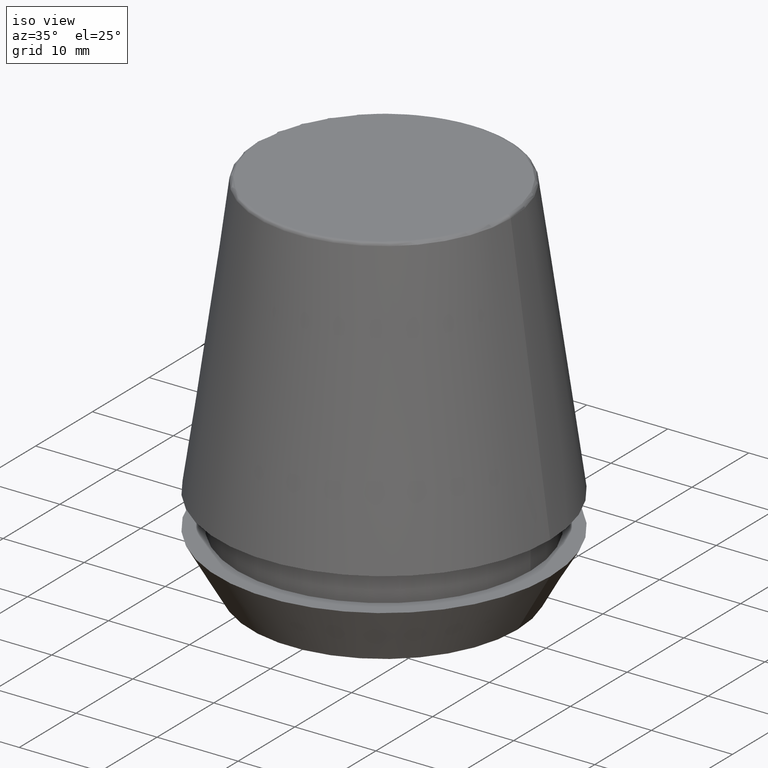
[diagram: clean part render]
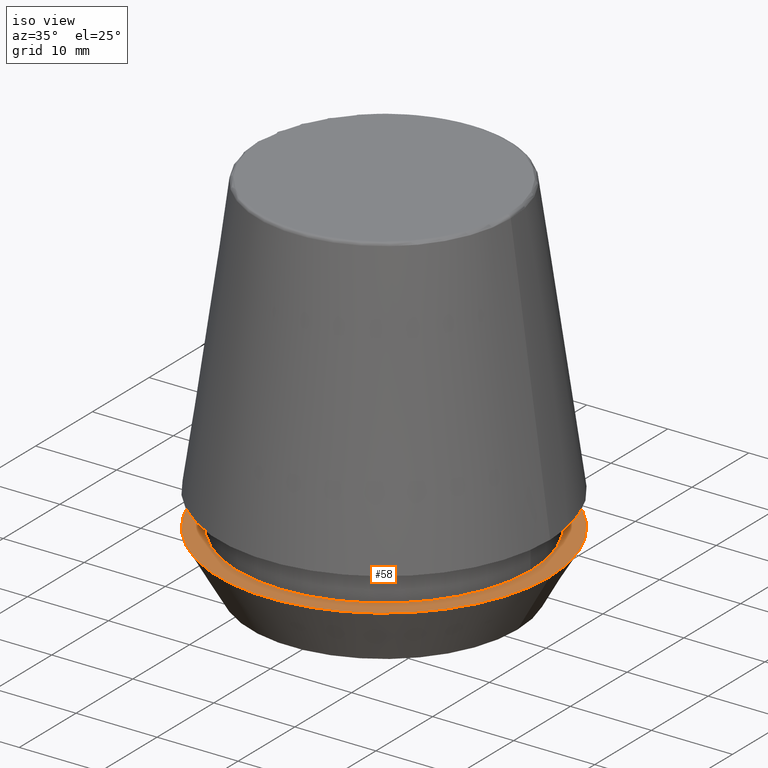
[diagram: same view with one face highlighted and labeled with its STEP entity id]
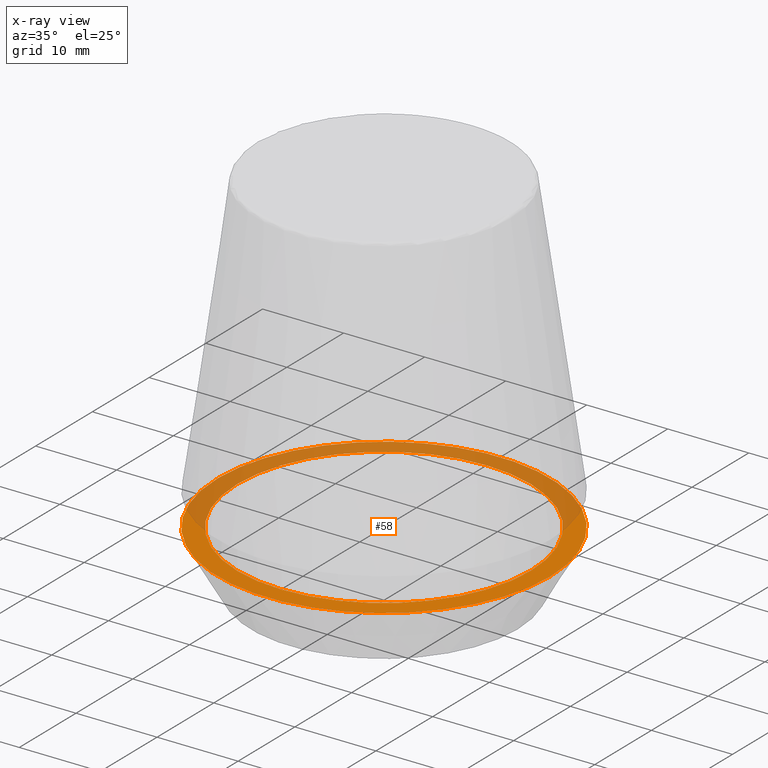
[diagram: x-ray of the same camera — body ghosted, the highlighted face saturated]
A machine part, iso view. The second image highlights one B-rep face of the part: STEP entity #58.
The next image is the same camera in x-ray: the body ghosted, the highlighted face saturated — about 47% of this face is hidden behind the body in this view.
In plain terms, the highlighted planar face has unit normal (0, 0, -1).
Its self-contained STEP definition (entity closure, byte-faithful):
#1 = VERTEX_POINT ( 'NONE', #348 ) ;
#21 = CARTESIAN_POINT ( 'NONE',  ( -18.10000000000000100, 2.216610706456709600E-015, 6.999999999999999100 ) ) ;
#22 = DIRECTION ( 'NONE',  ( -0.0000000000000000000, -0.0000000000000000000, 1.000000000000000000 ) ) ;
#57 = CARTESIAN_POINT ( 'NONE',  ( 0.0000000000000000000, 20.50000000000000000, 7.000000000000002700 ) ) ;
#58 = ADVANCED_FACE ( 'NONE', ( #374, #75 ), #345, .F. ) ;
#60 = AXIS2_PLACEMENT_3D ( 'NONE', #148, #22, #285 ) ;
#63 = VERTEX_POINT ( 'NONE', #21 ) ;
#69 = ORIENTED_EDGE ( 'NONE', *, *, #201, .T. ) ;
#71 = AXIS2_PLACEMENT_3D ( 'NONE', #244, #282, #72 ) ;
#72 = DIRECTION ( 'NONE',  ( 1.000000000000000000, 0.0000000000000000000, 0.0000000000000000000 ) ) ;
#75 = FACE_OUTER_BOUND ( 'NONE', #88, .T. ) ;
#80 = CARTESIAN_POINT ( 'NONE',  ( -20.50000000000000000, 2.510525938252074100E-015, 7.000000000000006200 ) ) ;
#86 = DIRECTION ( 'NONE',  ( 0.0000000000000000000, 0.0000000000000000000, -1.000000000000000000 ) ) ;
#88 = EDGE_LOOP ( 'NONE', ( #69, #241 ) ) ;
#108 = DIRECTION ( 'NONE',  ( 1.000000000000000000, 0.0000000000000000000, 0.0000000000000000000 ) ) ;
#109 = DIRECTION ( 'NONE',  ( -0.0000000000000000000, -0.0000000000000000000, 1.000000000000000000 ) ) ;
#135 = CIRCLE ( 'NONE', #60, 20.50000000000000000 ) ;
#137 = CARTESIAN_POINT ( 'NONE',  ( 0.0000000000000000000, 0.0000000000000000000, 6.999999999999999100 ) ) ;
#144 = ORIENTED_EDGE ( 'NONE', *, *, #177, .F. ) ;
#148 = CARTESIAN_POINT ( 'NONE',  ( 0.0000000000000000000, 0.0000000000000000000, 7.000000000000006200 ) ) ;
#155 = AXIS2_PLACEMENT_3D ( 'NONE', #137, #311, #108 ) ;
#164 = CIRCLE ( 'NONE', #155, 18.10000000000000100 ) ;
#177 = EDGE_CURVE ( 'NONE', #298, #63, #183, .T. ) ;
#183 = CIRCLE ( 'NONE', #234, 18.10000000000000100 ) ;
#187 = VERTEX_POINT ( 'NONE', #80 ) ;
#193 = EDGE_CURVE ( 'NONE', #63, #298, #164, .T. ) ;
#200 = CIRCLE ( 'NONE', #71, 20.50000000000000000 ) ;
#201 = EDGE_CURVE ( 'NONE', #1, #187, #200, .T. ) ;
#227 = ORIENTED_EDGE ( 'NONE', *, *, #193, .F. ) ;
#234 = AXIS2_PLACEMENT_3D ( 'NONE', #312, #109, #292 ) ;
#241 = ORIENTED_EDGE ( 'NONE', *, *, #371, .T. ) ;
#243 = AXIS2_PLACEMENT_3D ( 'NONE', #57, #86, #262 ) ;
#244 = CARTESIAN_POINT ( 'NONE',  ( 0.0000000000000000000, 0.0000000000000000000, 7.000000000000006200 ) ) ;
#262 = DIRECTION ( 'NONE',  ( -1.000000000000000000, 0.0000000000000000000, -0.0000000000000000000 ) ) ;
#282 = DIRECTION ( 'NONE',  ( -0.0000000000000000000, -0.0000000000000000000, 1.000000000000000000 ) ) ;
#285 = DIRECTION ( 'NONE',  ( 1.000000000000000000, 0.0000000000000000000, 0.0000000000000000000 ) ) ;
#292 = DIRECTION ( 'NONE',  ( 1.000000000000000000, 0.0000000000000000000, 0.0000000000000000000 ) ) ;
#298 = VERTEX_POINT ( 'NONE', #305 ) ;
#305 = CARTESIAN_POINT ( 'NONE',  ( 18.10000000000000100, 0.0000000000000000000, 6.999999999999999100 ) ) ;
#311 = DIRECTION ( 'NONE',  ( -0.0000000000000000000, -0.0000000000000000000, 1.000000000000000000 ) ) ;
#312 = CARTESIAN_POINT ( 'NONE',  ( 0.0000000000000000000, 0.0000000000000000000, 6.999999999999999100 ) ) ;
#335 = EDGE_LOOP ( 'NONE', ( #144, #227 ) ) ;
#345 = PLANE ( 'NONE',  #243 ) ;
#348 = CARTESIAN_POINT ( 'NONE',  ( 20.50000000000000000, 0.0000000000000000000, 7.000000000000006200 ) ) ;
#371 = EDGE_CURVE ( 'NONE', #187, #1, #135, .T. ) ;
#374 = FACE_BOUND ( 'NONE', #335, .T. ) ;